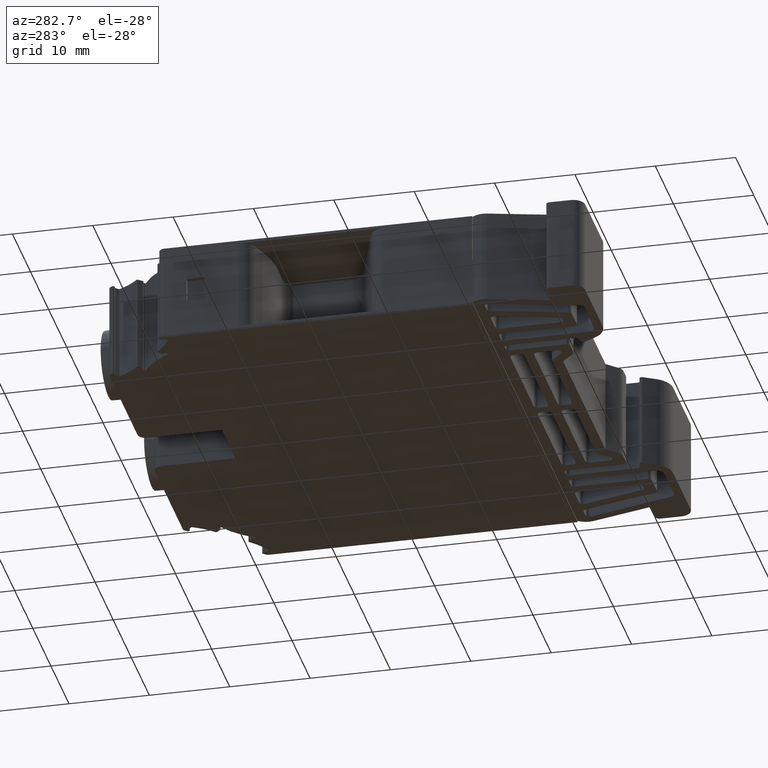
[diagram: clean part render]
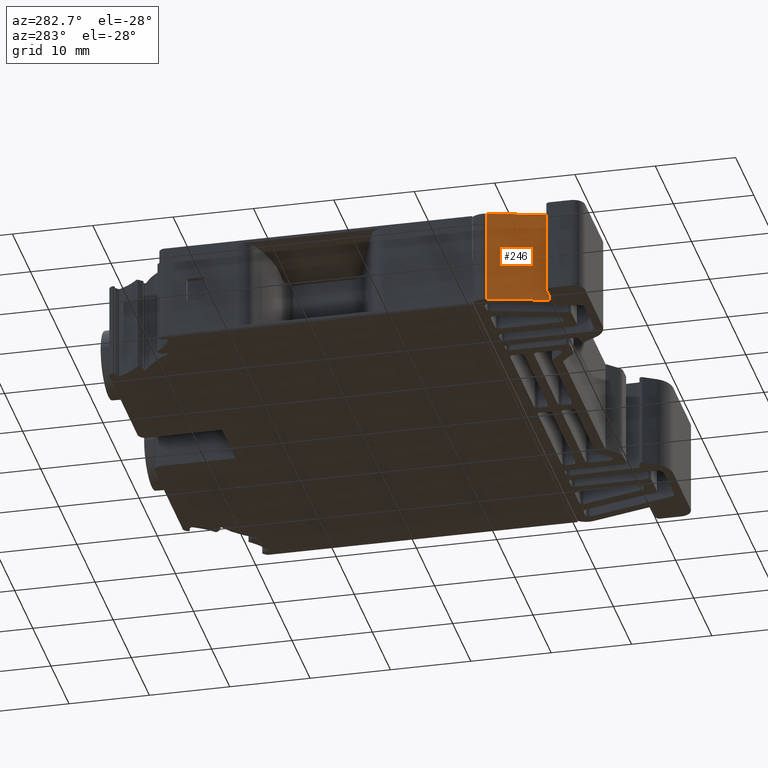
[diagram: same view with one face highlighted and labeled with its STEP entity id]
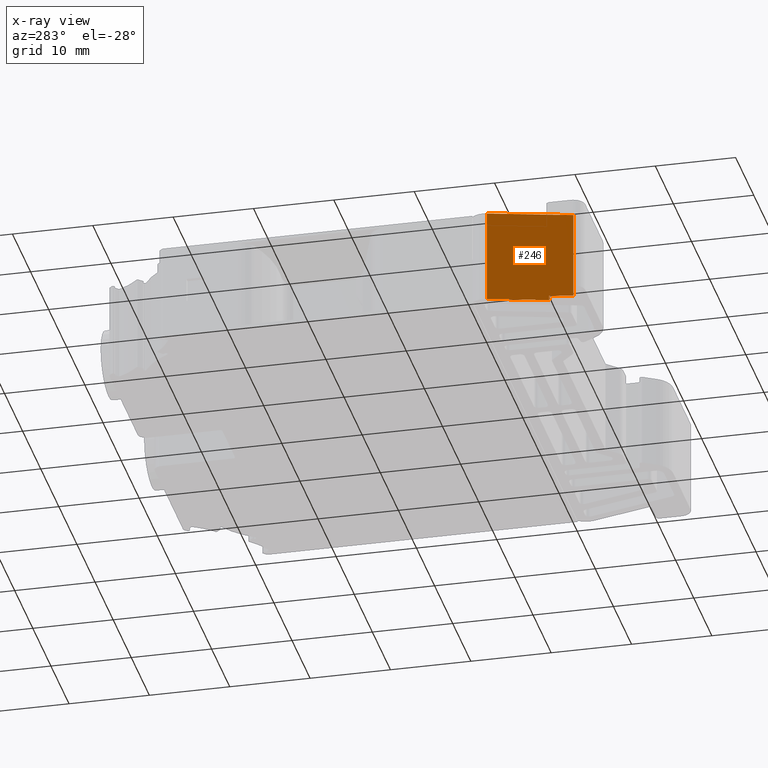
[diagram: x-ray of the same camera — body ghosted, the highlighted face saturated]
A machine part, auxiliary view. The second image highlights one B-rep face of the part: STEP entity #246.
The next image is the same camera in x-ray: the body ghosted, the highlighted face saturated — about 0% of this face is hidden behind the body in this view.
In plain terms, the highlighted planar face has unit normal (0.9659, 0.2588, -0).
Its self-contained STEP definition (entity closure, byte-faithful):
#51 = B_SPLINE_CURVE_WITH_KNOTS ( 'NONE', 3,
 ( #1383, #1399, #1401, #1402 ),
 .UNSPECIFIED., .F., .F.,
 ( 4, 4 ),
 ( 0.0000000000000000000, 1.000000000000000000 ),
 .UNSPECIFIED. ) ;
#246 = ADVANCED_FACE ( 'NONE', ( #5193 ), #5205, .F. ) ;
#1383 = CARTESIAN_POINT ( 'NONE',  ( 1721.770009947165400, 768.1168378752181500, 11.90000000000000000 ) ) ;
#1399 = CARTESIAN_POINT ( 'NONE',  ( 1722.676921179198400, 764.7319515184547100, 11.90000000000000000 ) ) ;
#1401 = CARTESIAN_POINT ( 'NONE',  ( 1723.583832411231700, 761.3470651616913800, 11.90000000000000000 ) ) ;
#1402 = CARTESIAN_POINT ( 'NONE',  ( 1724.490743643263200, 757.9621788049275900, 11.90000000000000000 ) ) ;
#1504 = EDGE_CURVE ( 'NONE', #14231, #14314, #51, .T. ) ;
#1688 = EDGE_CURVE ( 'NONE', #14225, #14252, #13102, .T. ) ;
#1913 = EDGE_CURVE ( 'NONE', #14270, #14215, #7282, .T. ) ;
#2432 = EDGE_CURVE ( 'NONE', #14215, #14225, #10184, .T. ) ;
#2463 = EDGE_CURVE ( 'NONE', #14252, #14231, #10252, .T. ) ;
#2507 = EDGE_CURVE ( 'NONE', #14314, #14270, #10512, .T. ) ;
#3358 = EDGE_LOOP ( 'NONE', ( #13540, #13527, #13509, #13541, #13427, #13439 ) ) ;
#3954 = VECTOR ( 'NONE', #10178, 1000.000000000000000 ) ;
#4023 = VECTOR ( 'NONE', #10302, 1000.000000000000000 ) ;
#4035 = VECTOR ( 'NONE', #10518, 1000.000000000000000 ) ;
#4999 = VECTOR ( 'NONE', #7264, 1000.000000000000100 ) ;
#5174 = CARTESIAN_POINT ( 'NONE',  ( 1721.740713485689900, 768.2261817550239600, 11.90000000000000000 ) ) ;
#5175 = DIRECTION ( 'NONE',  ( -0.2588013837126015800, 0.9659305584711783700, 0.0000000000000000000 ) ) ;
#5177 = DIRECTION ( 'NONE',  ( 0.9659305584711784800, 0.2588013837126016400, -0.0000000000000000000 ) ) ;
#5193 = FACE_OUTER_BOUND ( 'NONE', #3358, .T. ) ;
#5205 = PLANE ( 'NONE',  #12755 ) ;
#7264 = DIRECTION ( 'NONE',  ( -0.2588013837126015800, 0.9659305584711783700, 0.0000000000000000000 ) ) ;
#7282 = LINE ( 'NONE', #7311, #4999 ) ;
#7311 = CARTESIAN_POINT ( 'NONE',  ( 1721.740713485689900, 768.2261817550239600, 0.8000000000000003800 ) ) ;
#10163 = CARTESIAN_POINT ( 'NONE',  ( 1723.729990059225900, 760.8015574965892300, 11.90000000000000000 ) ) ;
#10178 = DIRECTION ( 'NONE',  ( -0.0000000000000000000, -0.0000000000000000000, -1.000000000000000000 ) ) ;
#10184 = LINE ( 'NONE', #10163, #3954 ) ;
#10252 = LINE ( 'NONE', #10301, #4023 ) ;
#10301 = CARTESIAN_POINT ( 'NONE',  ( 1721.770009947165400, 768.1168378752181500, 11.90000000000000000 ) ) ;
#10302 = DIRECTION ( 'NONE',  ( 0.0000000000000000000, 0.0000000000000000000, 1.000000000000000000 ) ) ;
#10512 = LINE ( 'NONE', #10517, #4035 ) ;
#10517 = CARTESIAN_POINT ( 'NONE',  ( 1724.490743643261100, 757.9621788049270200, 11.90000000000000000 ) ) ;
#10518 = DIRECTION ( 'NONE',  ( -0.0000000000000000000, -0.0000000000000000000, -1.000000000000000000 ) ) ;
#12161 = CARTESIAN_POINT ( 'NONE',  ( 1723.729990059226600, 760.8015574965894500, 0.8000000000000002700 ) ) ;
#12193 = CARTESIAN_POINT ( 'NONE',  ( 1721.770009947165400, 768.1168378752181500, 11.90000000000000000 ) ) ;
#12194 = CARTESIAN_POINT ( 'NONE',  ( 1721.770009947165400, 768.1168378752181500, 0.1500000000000004700 ) ) ;
#12198 = CARTESIAN_POINT ( 'NONE',  ( 1723.729990059225900, 760.8015574965890000, 0.1500000000000014700 ) ) ;
#12237 = CARTESIAN_POINT ( 'NONE',  ( 1724.490743643263200, 757.9621788049275900, 11.90000000000000000 ) ) ;
#12262 = CARTESIAN_POINT ( 'NONE',  ( 1724.490743643263200, 757.9621788049275900, 0.8000000000000001600 ) ) ;
#12423 = CARTESIAN_POINT ( 'NONE',  ( 1723.729990059225400, 760.8015574965899100, 0.1499999999999999900 ) ) ;
#12427 = DIRECTION ( 'NONE',  ( -0.2588013837126206800, 0.9659305584711733700, 0.0000000000000000000 ) ) ;
#12755 = AXIS2_PLACEMENT_3D ( 'NONE', #5174, #5177, #5175 ) ;
#12940 = VECTOR ( 'NONE', #12427, 1000.000000000000100 ) ;
#13102 = LINE ( 'NONE', #12423, #12940 ) ;
#13427 = ORIENTED_EDGE ( 'NONE', *, *, #1688, .F. ) ;
#13439 = ORIENTED_EDGE ( 'NONE', *, *, #2432, .F. ) ;
#13509 = ORIENTED_EDGE ( 'NONE', *, *, #1504, .F. ) ;
#13527 = ORIENTED_EDGE ( 'NONE', *, *, #2507, .F. ) ;
#13540 = ORIENTED_EDGE ( 'NONE', *, *, #1913, .F. ) ;
#13541 = ORIENTED_EDGE ( 'NONE', *, *, #2463, .F. ) ;
#14215 = VERTEX_POINT ( 'NONE', #12161 ) ;
#14225 = VERTEX_POINT ( 'NONE', #12198 ) ;
#14231 = VERTEX_POINT ( 'NONE', #12193 ) ;
#14252 = VERTEX_POINT ( 'NONE', #12194 ) ;
#14270 = VERTEX_POINT ( 'NONE', #12262 ) ;
#14314 = VERTEX_POINT ( 'NONE', #12237 ) ;